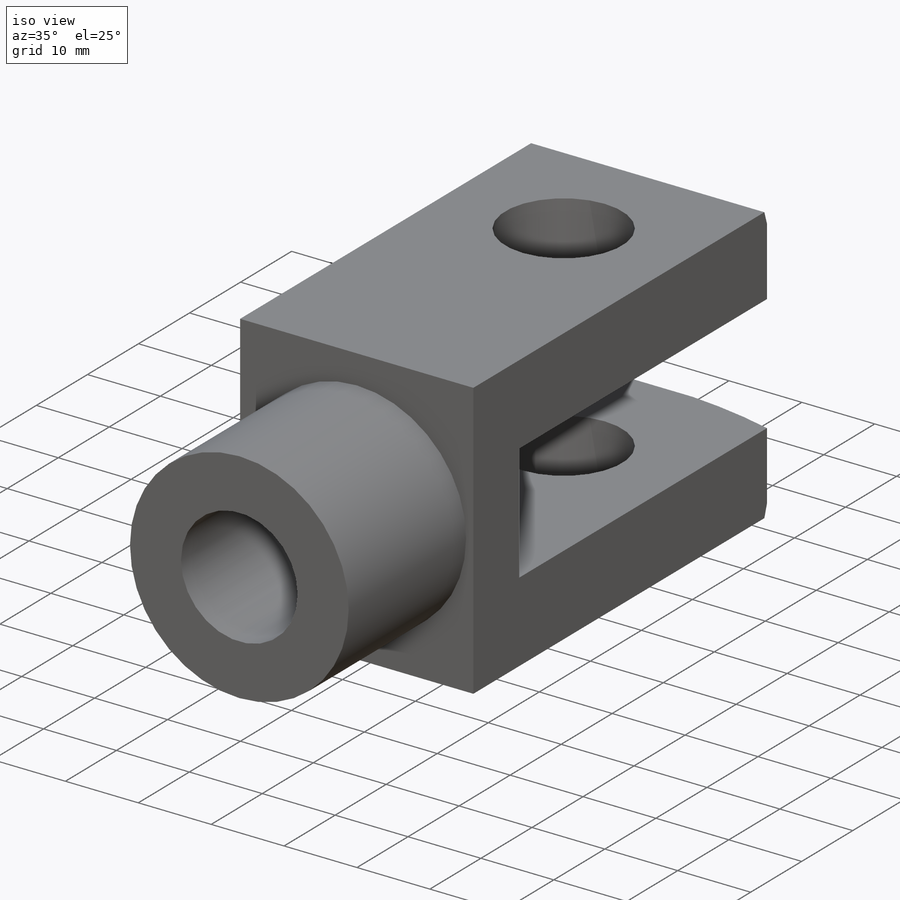
[diagram: iso view]
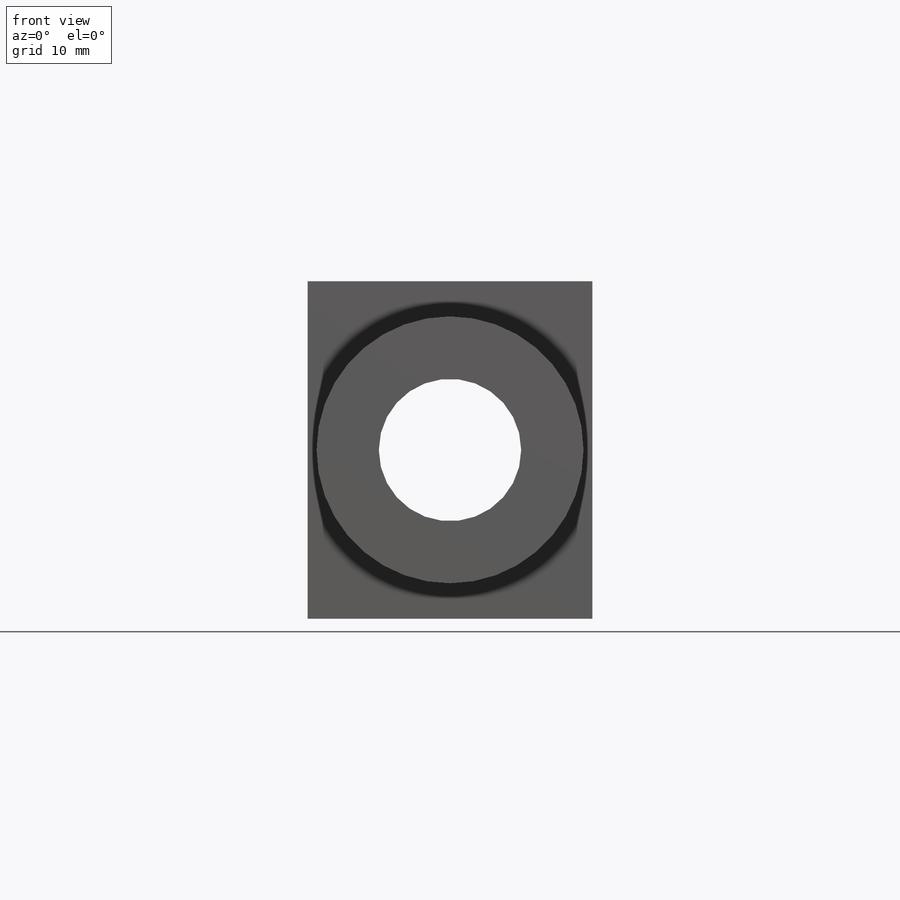
[diagram: front view]
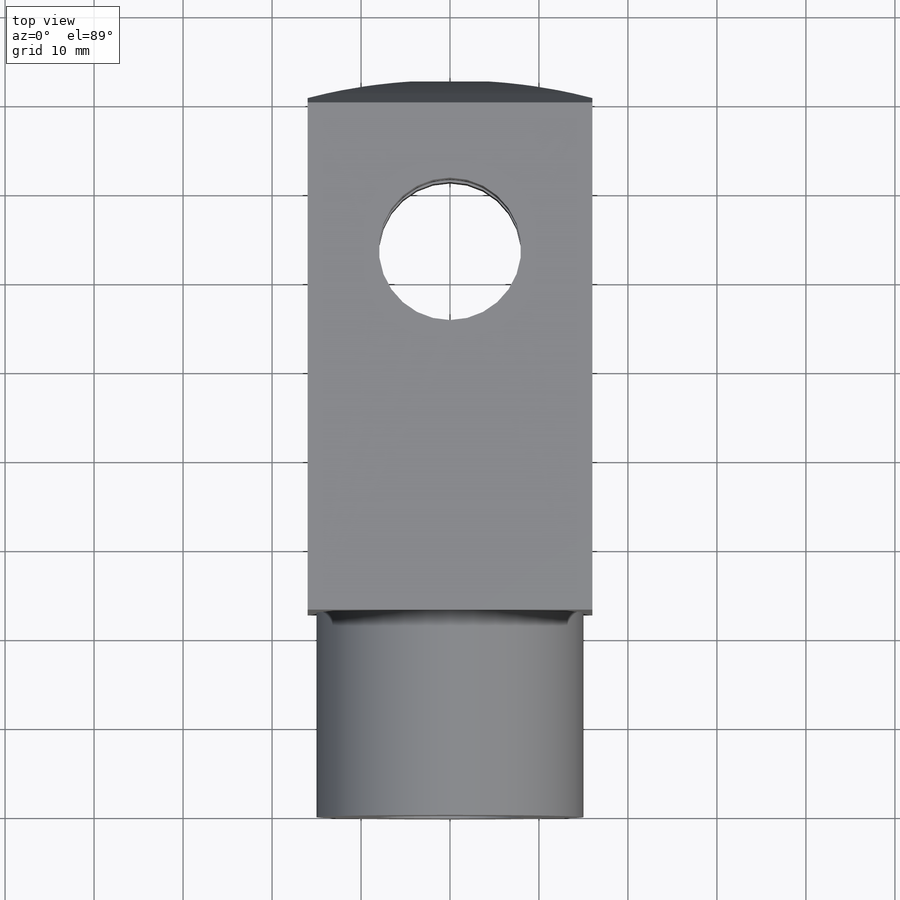
[diagram: top view]
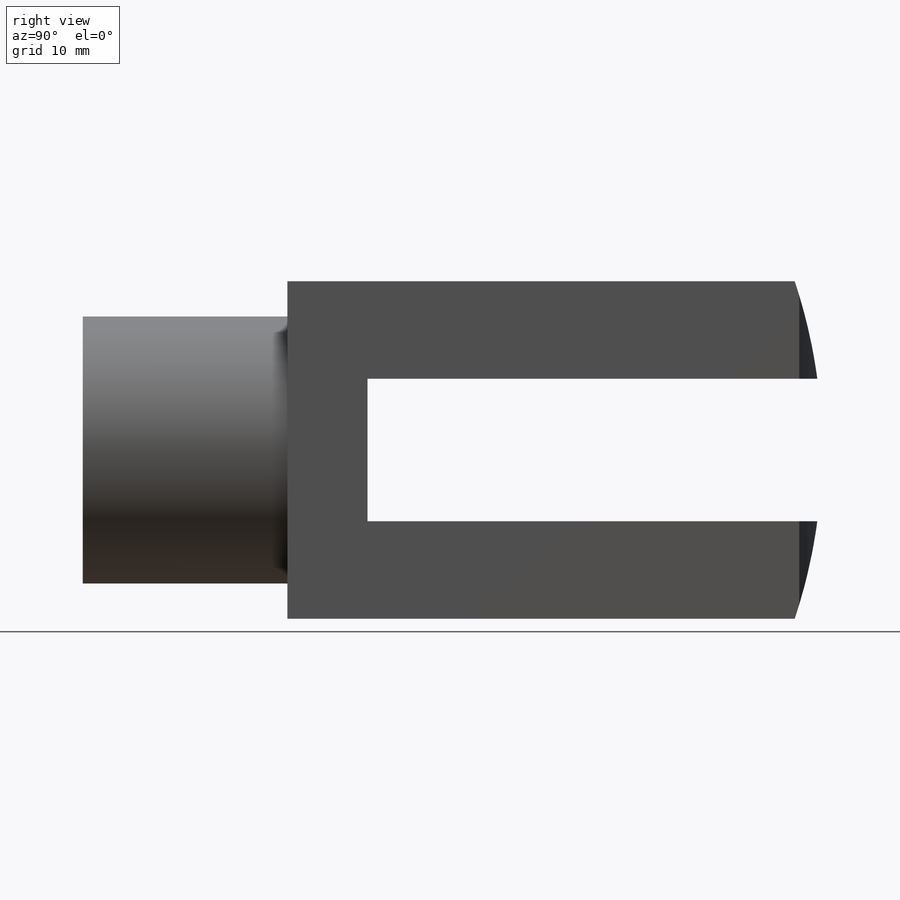
[diagram: right view]
SOLIDWORKS PART (.sldprt)
format: sldprt  version: not decoded by parser v0  size: 225,280 bytes
history: native  units: mm
features: sketch x8, cut_extrude x7, plane x3, material x1, revolve x1 (+10 scaffold rows collapsed)
feature tree (30):
  scaffold x10  (default folders/planes/origin — collapsed)
  material  "Material <sin especificar>"
  plane  "Alzado"
  plane  "Planta"
  plane  "Vista lateral"
  sketch  "Croquis1"  dims[D1=15.0mm D2=8.0mm D3=51.0mm D4=83.0mm D5=60.0mm]
  revolve  "Revolución2"  Angle=360deg
  sketch  "Croquis3"  dims[D1=16.0mm]
  cut_extrude  "Cortar-Extruir1"  Depth=51mm
  sketch  "Croquis4"
  cut_extrude  "Cortar-Extruir2"  [1 undecoded]
  sketch  "Croquis5"  dims[D1=32.0mm]
  cut_extrude  "Cortar-Extruir4"  [1 undecoded]
  sketch  "Croquis6"
  cut_extrude  "Cortar-Extruir5"  Depth=51mm
  sketch  "Croquis7"
  cut_extrude  "Cortar-Extruir6"  Depth=51mm
  sketch  "Croquis8"  dims[D1=16.0mm D2=19.0mm]
  cut_extrude  "Cortar-Extruir7"  [1 undecoded]
  sketch  "Croquis9"  dims[D1=16.0mm]
  cut_extrude  "Cortar-Extruir8"  Depth=51mm
decode coverage: 10 of 16 modeling features carry decoded parameters
note: 3 parameter values undecoded
summary: no parameter record found for 3 features
note: suppression state not decoded; provenance and decode notes live in map.json
